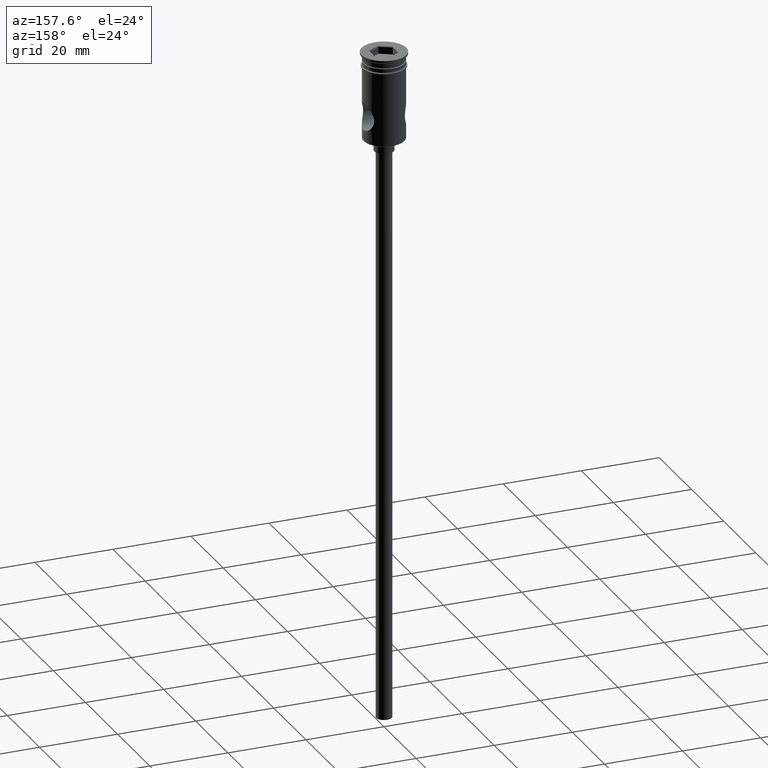
[diagram: clean part render]
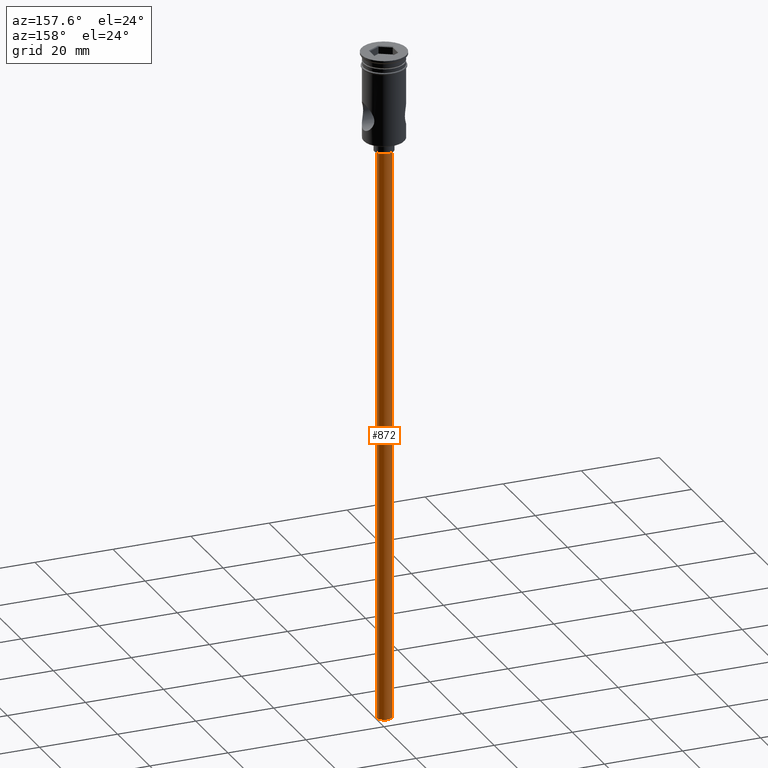
[diagram: same view with one face highlighted and labeled with its STEP entity id]
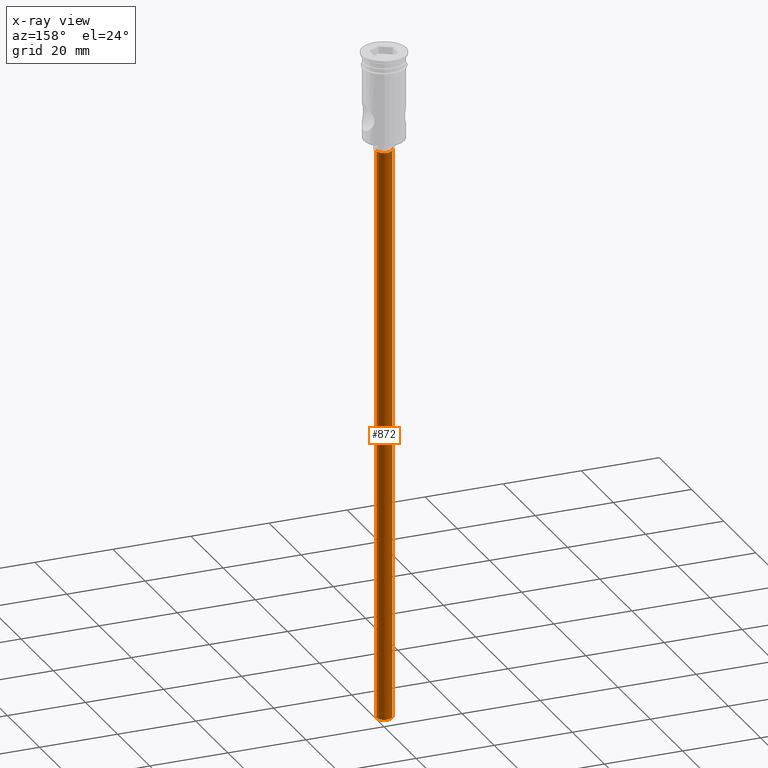
[diagram: x-ray of the same camera — body ghosted, the highlighted face saturated]
A machine part, auxiliary view. The second image highlights one B-rep face of the part: STEP entity #872.
The next image is the same camera in x-ray: the body ghosted, the highlighted face saturated — about 0% of this face is hidden behind the body in this view.
In plain terms, the highlighted cylindrical surface (edge-blend (fillet) strip) has radius 2 mm, axis along (-0, -0, 1).
Its self-contained STEP definition (entity closure, byte-faithful):
#43 = LINE ( 'NONE', #487, #283 ) ;
#78 = VERTEX_POINT ( 'NONE', #1390 ) ;
#80 = CARTESIAN_POINT ( 'NONE',  ( -2.000000000000000000, 2.449293598294706414E-16, -172.5000000000000000 ) ) ;
#214 = EDGE_CURVE ( 'NONE', #1109, #534, #43, .T. ) ;
#218 = AXIS2_PLACEMENT_3D ( 'NONE', #1002, #300, #421 ) ;
#250 = EDGE_CURVE ( 'NONE', #603, #1109, #1311, .T. ) ;
#255 = DIRECTION ( 'NONE',  ( -1.000000000000000000, 0.000000000000000000, 0.000000000000000000 ) ) ;
#283 = VECTOR ( 'NONE', #1317, 1000.000000000000000 ) ;
#285 = ORIENTED_EDGE ( 'NONE', *, *, #320, .T. ) ;
#286 = CARTESIAN_POINT ( 'NONE',  ( 2.000000000000000000, 0.000000000000000000, -172.5000000000000000 ) ) ;
#300 = DIRECTION ( 'NONE',  ( 0.000000000000000000, 0.000000000000000000, -1.000000000000000000 ) ) ;
#316 = DIRECTION ( 'NONE',  ( -0.000000000000000000, -0.000000000000000000, 1.000000000000000000 ) ) ;
#320 = EDGE_CURVE ( 'NONE', #603, #78, #787, .T. ) ;
#384 = CARTESIAN_POINT ( 'NONE',  ( 0.000000000000000000, 0.000000000000000000, -172.5000000000000000 ) ) ;
#421 = DIRECTION ( 'NONE',  ( -1.000000000000000000, 0.000000000000000000, 0.000000000000000000 ) ) ;
#487 = CARTESIAN_POINT ( 'NONE',  ( 2.000000000000000000, 0.000000000000000000, -172.5000000000000000 ) ) ;
#534 = VERTEX_POINT ( 'NONE', #1290 ) ;
#603 = VERTEX_POINT ( 'NONE', #80 ) ;
#611 = DIRECTION ( 'NONE',  ( -0.000000000000000000, -0.000000000000000000, 1.000000000000000000 ) ) ;
#616 = FACE_OUTER_BOUND ( 'NONE', #916, .T. ) ;
#678 = AXIS2_PLACEMENT_3D ( 'NONE', #1261, #1362, #255 ) ;
#746 = CYLINDRICAL_SURFACE ( 'NONE', #1352, 2.000000000000000000 ) ;
#787 = LINE ( 'NONE', #1344, #1285 ) ;
#872 = ADVANCED_FACE ( 'NONE', ( #616 ), #746, .T. ) ;
#916 = EDGE_LOOP ( 'NONE', ( #994, #285, #934, #1155 ) ) ;
#934 = ORIENTED_EDGE ( 'NONE', *, *, #1416, .T. ) ;
#961 = DIRECTION ( 'NONE',  ( 1.000000000000000000, 0.000000000000000000, 0.000000000000000000 ) ) ;
#994 = ORIENTED_EDGE ( 'NONE', *, *, #250, .F. ) ;
#1002 = CARTESIAN_POINT ( 'NONE',  ( 0.000000000000000000, 0.000000000000000000, -172.5000000000000000 ) ) ;
#1022 = CIRCLE ( 'NONE', #678, 2.000000000000000000 ) ;
#1109 = VERTEX_POINT ( 'NONE', #286 ) ;
#1155 = ORIENTED_EDGE ( 'NONE', *, *, #214, .F. ) ;
#1261 = CARTESIAN_POINT ( 'NONE',  ( 0.000000000000000000, 0.000000000000000000, -25.50000000000000000 ) ) ;
#1285 = VECTOR ( 'NONE', #316, 1000.000000000000000 ) ;
#1290 = CARTESIAN_POINT ( 'NONE',  ( 2.000000000000000000, 0.000000000000000000, -25.50000000000000000 ) ) ;
#1311 = CIRCLE ( 'NONE', #218, 2.000000000000000000 ) ;
#1317 = DIRECTION ( 'NONE',  ( -0.000000000000000000, -0.000000000000000000, 1.000000000000000000 ) ) ;
#1344 = CARTESIAN_POINT ( 'NONE',  ( -2.000000000000000000, 2.449293598294706414E-16, -172.5000000000000000 ) ) ;
#1352 = AXIS2_PLACEMENT_3D ( 'NONE', #384, #611, #961 ) ;
#1362 = DIRECTION ( 'NONE',  ( 0.000000000000000000, 0.000000000000000000, -1.000000000000000000 ) ) ;
#1390 = CARTESIAN_POINT ( 'NONE',  ( -2.000000000000000000, 2.449293598294706414E-16, -25.50000000000000000 ) ) ;
#1416 = EDGE_CURVE ( 'NONE', #78, #534, #1022, .T. ) ;